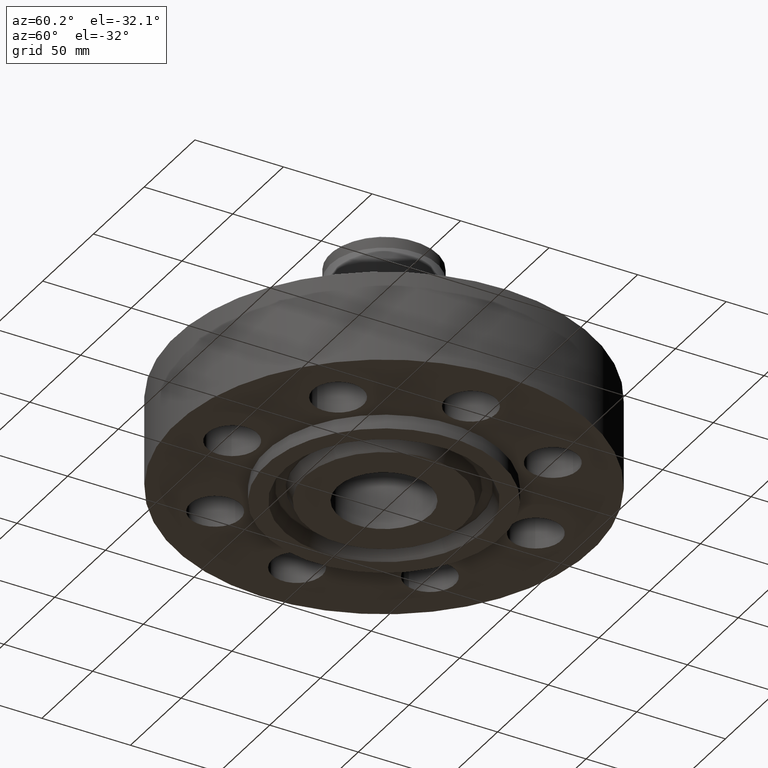
[diagram: clean part render]
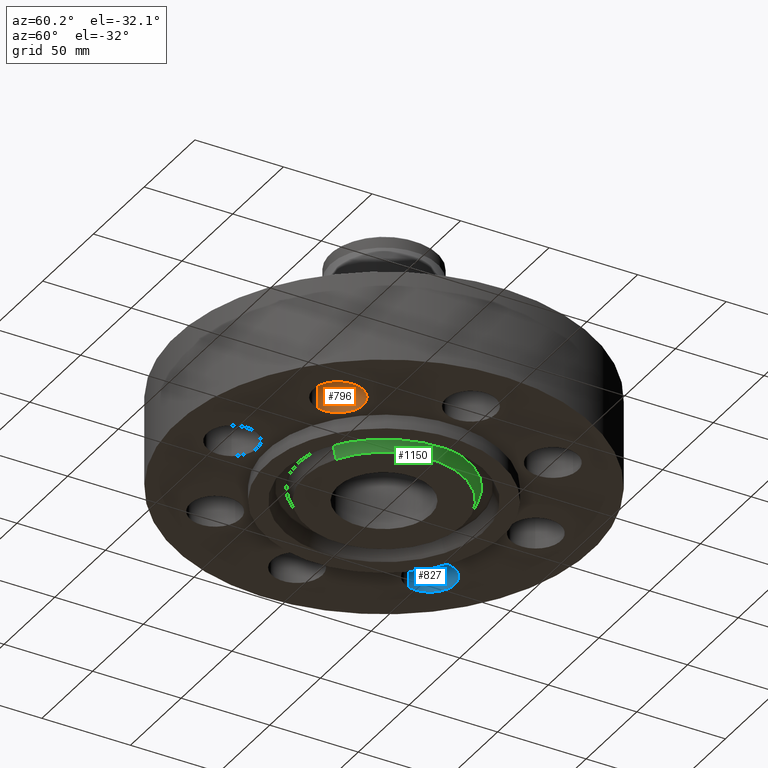
[diagram: same view with three faces highlighted in distinct colors, each labeled with its STEP entity id]
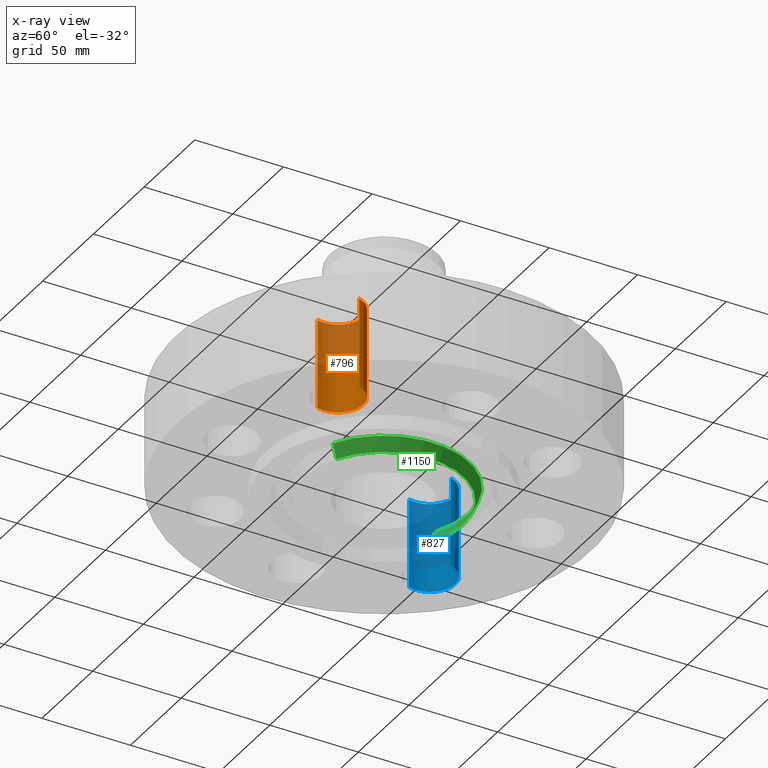
[diagram: x-ray of the same camera — body ghosted, the three highlighted faces saturated]
A machine part, auxiliary view with three faces highlighted in distinct colors.
The next image is the same camera in x-ray (body ghosted, the three faces saturated) — at least one of them is partly hidden behind the body in this view.
Their STEP definitions:

[orange] entity #796 — the highlighted cylindrical surface (edge-blend (fillet) strip) has radius 14.224 mm, axis along (-0, 0, -1).
#545=AXIS2_PLACEMENT_3D('Circle Axis2P3D',#543,#544,$) ;
#757=AXIS2_PLACEMENT_3D('Cylinder Axis2P3D',#754,#755,#756) ;
#787=AXIS2_PLACEMENT_3D('Circle Axis2P3D',#785,#786,$) ;
#538=CARTESIAN_POINT('Vertex',(2.92383317931,-2.22882324907,0.)) ;
#540=CARTESIAN_POINT('Vertex',(1.84913759372,-2.54414752395,0.)) ;
#543=CARTESIAN_POINT('Axis2P3D Location',(2.38648538651,-2.38648538651,0.)) ;
#754=CARTESIAN_POINT('Axis2P3D Location',(2.38648538651,-2.38648538651,1.99606299213)) ;
#759=CARTESIAN_POINT('Line Origine',(2.92383317931,-2.22882324907,1.)) ;
#763=CARTESIAN_POINT('Vertex',(2.92383317931,-2.22882324907,2.00000000001)) ;
#766=CARTESIAN_POINT('Line Origine',(1.84913759372,-2.54414752395,1.)) ;
#770=CARTESIAN_POINT('Vertex',(1.84913759372,-2.54414752395,2.00000000001)) ;
#785=CARTESIAN_POINT('Axis2P3D Location',(2.38648538651,-2.38648538651,2.00000000001)) ;
#544=DIRECTION('Axis2P3D Direction',(0.,0.,-0.0393700787402)) ;
#755=DIRECTION('Axis2P3D Direction',(-0.,0.,-0.0393700787402)) ;
#756=DIRECTION('Axis2P3D XDirection',(-0.0377775444876,-0.0110842335096,0.)) ;
#760=DIRECTION('Vector Direction',(0.,0.,-0.0393700787402)) ;
#767=DIRECTION('Vector Direction',(0.,0.,-0.0393700787402)) ;
#786=DIRECTION('Axis2P3D Direction',(-0.,0.,-0.0393700787402)) ;
#761=VECTOR('Line Direction',#760,0.0393700787402) ;
#768=VECTOR('Line Direction',#767,0.0393700787402) ;
#791=ORIENTED_EDGE('',*,*,#772,.F.) ;
#792=ORIENTED_EDGE('',*,*,#547,.T.) ;
#793=ORIENTED_EDGE('',*,*,#765,.T.) ;
#794=ORIENTED_EDGE('',*,*,#789,.F.) ;
#796=ADVANCED_FACE('PartBody',(#795),#758,.F.) ;
#546=CIRCLE('generated circle',#545,0.560000000002) ;
#788=CIRCLE('generated circle',#787,0.560000000002) ;
#758=CYLINDRICAL_SURFACE('generated cylinder',#757,0.560000000002) ;
#547=EDGE_CURVE('',#541,#539,#546,.T.) ;
#765=EDGE_CURVE('',#539,#764,#762,.F.) ;
#772=EDGE_CURVE('',#541,#771,#769,.F.) ;
#789=EDGE_CURVE('',#771,#764,#788,.T.) ;
#790=EDGE_LOOP('',(#791,#792,#793,#794)) ;
#795=FACE_OUTER_BOUND('',#790,.T.) ;
#762=LINE('Line',#759,#761) ;
#769=LINE('Line',#766,#768) ;
#539=VERTEX_POINT('',#538) ;
#541=VERTEX_POINT('',#540) ;
#764=VERTEX_POINT('',#763) ;
#771=VERTEX_POINT('',#770) ;

[blue] entity #827 — the highlighted cylindrical surface (edge-blend (fillet) strip) has radius 14.224 mm, axis along (0, 0, -1).
#608=AXIS2_PLACEMENT_3D('Circle Axis2P3D',#606,#607,$) ;
#800=AXIS2_PLACEMENT_3D('Cylinder Axis2P3D',#797,#798,#799) ;
#818=AXIS2_PLACEMENT_3D('Circle Axis2P3D',#816,#817,$) ;
#606=CARTESIAN_POINT('Axis2P3D Location',(-2.38648538651,2.38648538651,0.)) ;
#610=CARTESIAN_POINT('Vertex',(-2.92383317931,2.22882324907,0.)) ;
#612=CARTESIAN_POINT('Vertex',(-1.84913759372,2.54414752395,0.)) ;
#797=CARTESIAN_POINT('Axis2P3D Location',(-2.38648538651,2.38648538651,1.99606299213)) ;
#802=CARTESIAN_POINT('Line Origine',(-2.92383317931,2.22882324907,1.)) ;
#806=CARTESIAN_POINT('Vertex',(-2.92383317931,2.22882324907,2.00000000001)) ;
#809=CARTESIAN_POINT('Line Origine',(-1.84913759372,2.54414752395,1.)) ;
#813=CARTESIAN_POINT('Vertex',(-1.84913759372,2.54414752395,2.00000000001)) ;
#816=CARTESIAN_POINT('Axis2P3D Location',(-2.38648538651,2.38648538651,2.00000000001)) ;
#607=DIRECTION('Axis2P3D Direction',(0.,0.,-0.0393700787402)) ;
#798=DIRECTION('Axis2P3D Direction',(0.,0.,-0.0393700787402)) ;
#799=DIRECTION('Axis2P3D XDirection',(0.0377775444876,0.0110842335096,0.)) ;
#803=DIRECTION('Vector Direction',(0.,0.,-0.0393700787402)) ;
#810=DIRECTION('Vector Direction',(0.,0.,-0.0393700787402)) ;
#817=DIRECTION('Axis2P3D Direction',(0.,0.,-0.0393700787402)) ;
#804=VECTOR('Line Direction',#803,0.0393700787402) ;
#811=VECTOR('Line Direction',#810,0.0393700787402) ;
#822=ORIENTED_EDGE('',*,*,#808,.F.) ;
#823=ORIENTED_EDGE('',*,*,#614,.T.) ;
#824=ORIENTED_EDGE('',*,*,#815,.T.) ;
#825=ORIENTED_EDGE('',*,*,#820,.F.) ;
#827=ADVANCED_FACE('PartBody',(#826),#801,.F.) ;
#609=CIRCLE('generated circle',#608,0.560000000002) ;
#819=CIRCLE('generated circle',#818,0.560000000002) ;
#801=CYLINDRICAL_SURFACE('generated cylinder',#800,0.560000000002) ;
#614=EDGE_CURVE('',#611,#613,#609,.T.) ;
#808=EDGE_CURVE('',#611,#807,#805,.F.) ;
#815=EDGE_CURVE('',#613,#814,#812,.F.) ;
#820=EDGE_CURVE('',#807,#814,#819,.T.) ;
#821=EDGE_LOOP('',(#822,#823,#824,#825)) ;
#826=FACE_OUTER_BOUND('',#821,.T.) ;
#805=LINE('Line',#802,#804) ;
#812=LINE('Line',#809,#811) ;
#611=VERTEX_POINT('',#610) ;
#613=VERTEX_POINT('',#612) ;
#807=VERTEX_POINT('',#806) ;
#814=VERTEX_POINT('',#813) ;

[green] entity #1150 — the highlighted conical surface has half-angle 23 deg.
#956=AXIS2_PLACEMENT_3D('Circle Axis2P3D',#954,#955,$) ;
#1100=AXIS2_PLACEMENT_3D('Circle Axis2P3D',#1098,#1099,$) ;
#1132=AXIS2_PLACEMENT_3D('Cone Axis2P3D',#1129,#1130,#1131) ;
#954=CARTESIAN_POINT('Axis2P3D Location',(5.59482469102E-016,-2.79741234551E-016,-0.313000000001)) ;
#958=CARTESIAN_POINT('Vertex',(-0.846425788409,1.54937201302,-0.313000000001)) ;
#960=CARTESIAN_POINT('Vertex',(0.846425788409,-1.54937201302,-0.313000000001)) ;
#1095=CARTESIAN_POINT('Vertex',(0.906278912003,-1.65893242087,-0.0188873350169)) ;
#1098=CARTESIAN_POINT('Axis2P3D Location',(0.,0.,-0.0188873350169)) ;
#1102=CARTESIAN_POINT('Vertex',(-0.906278912003,1.65893242087,-0.0188873350169)) ;
#1129=CARTESIAN_POINT('Axis2P3D Location',(0.,0.,-0.373000000001)) ;
#1134=CARTESIAN_POINT('Line Origine',(-0.876352350206,1.60415221695,-0.165943667509)) ;
#1139=CARTESIAN_POINT('Line Origine',(0.876352350206,-1.60415221695,-0.165943667509)) ;
#955=DIRECTION('Axis2P3D Direction',(0.,0.,-0.0393700787402)) ;
#1099=DIRECTION('Axis2P3D Direction',(0.,0.,0.0393700787402)) ;
#1130=DIRECTION('Axis2P3D Direction',(0.,0.,0.0393700787402)) ;
#1131=DIRECTION('Axis2P3D XDirection',(-0.0188750212049,0.0345504945626,0.)) ;
#1135=DIRECTION('Vector Direction',(-0.00737505833565,0.0134999537303,0.0362403485611)) ;
#1140=DIRECTION('Vector Direction',(0.00737505833565,-0.0134999537303,0.0362403485611)) ;
#1136=VECTOR('Line Direction',#1135,0.0393700787402) ;
#1141=VECTOR('Line Direction',#1140,0.0393700787402) ;
#1145=ORIENTED_EDGE('',*,*,#1138,.F.) ;
#1146=ORIENTED_EDGE('',*,*,#1104,.F.) ;
#1147=ORIENTED_EDGE('',*,*,#1143,.T.) ;
#1148=ORIENTED_EDGE('',*,*,#962,.F.) ;
#1150=ADVANCED_FACE('PartBody',(#1149),#1133,.T.) ;
#957=CIRCLE('generated circle',#956,1.76550000001) ;
#1101=CIRCLE('generated circle',#1100,1.89034341942) ;
#1133=CONICAL_SURFACE('Cone',#1132,1.74003151103,0.401425727959) ;
#962=EDGE_CURVE('',#959,#961,#957,.T.) ;
#1104=EDGE_CURVE('',#1096,#1103,#1101,.T.) ;
#1138=EDGE_CURVE('',#1103,#959,#1137,.F.) ;
#1143=EDGE_CURVE('',#1096,#961,#1142,.F.) ;
#1144=EDGE_LOOP('',(#1145,#1146,#1147,#1148)) ;
#1149=FACE_OUTER_BOUND('',#1144,.T.) ;
#1137=LINE('Line',#1134,#1136) ;
#1142=LINE('Line',#1139,#1141) ;
#959=VERTEX_POINT('',#958) ;
#961=VERTEX_POINT('',#960) ;
#1096=VERTEX_POINT('',#1095) ;
#1103=VERTEX_POINT('',#1102) ;